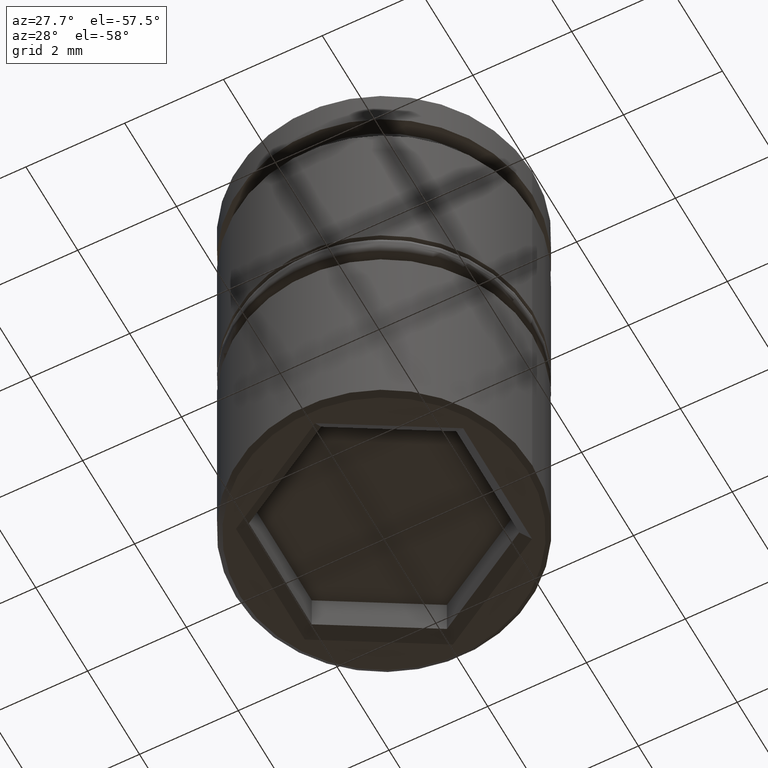
[diagram: clean part render]
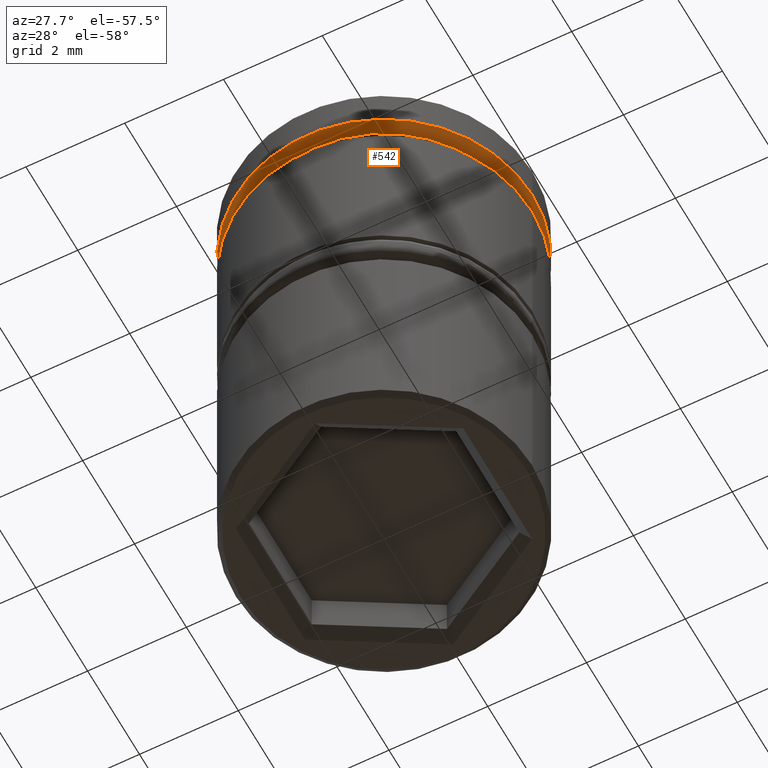
[diagram: same view with one face highlighted and labeled with its STEP entity id]
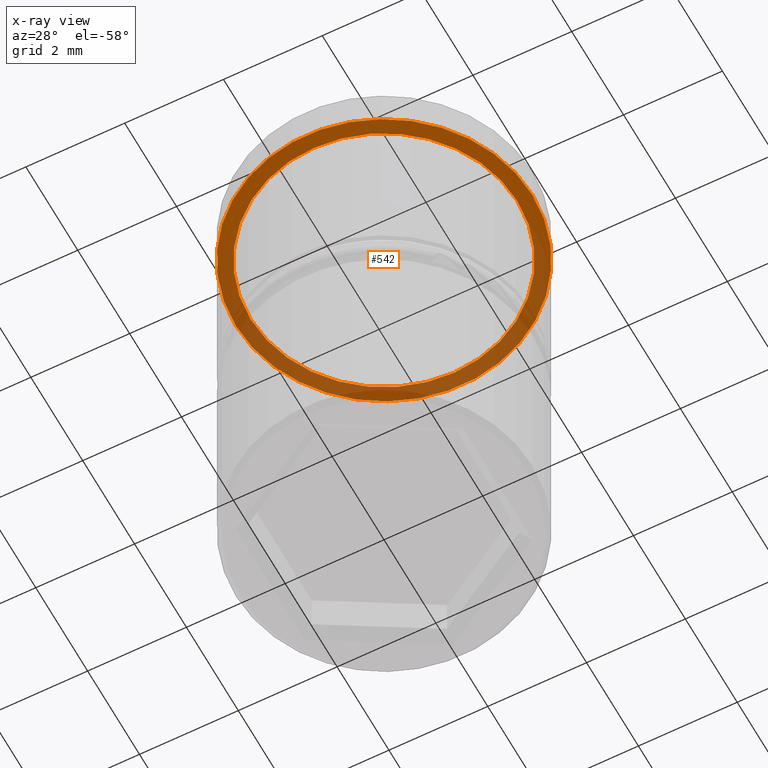
[diagram: x-ray of the same camera — body ghosted, the highlighted face saturated]
A machine part, auxiliary view. The second image highlights one B-rep face of the part: STEP entity #542.
The next image is the same camera in x-ray: the body ghosted, the highlighted face saturated — about 53% of this face is hidden behind the body in this view.
In plain terms, the highlighted planar face has unit normal (0, 0, -1).
Its self-contained STEP definition (entity closure, byte-faithful):
#6 = CARTESIAN_POINT ( 'NONE',  ( -3.000000000000000000, 3.673940397442059868E-16, -0.8749999999999998890 ) ) ;
#21 = CARTESIAN_POINT ( 'NONE',  ( 0.000000000000000000, 0.000000000000000000, -0.8749999999999998890 ) ) ;
#66 = CARTESIAN_POINT ( 'NONE',  ( 0.000000000000000000, 0.000000000000000000, -0.8749999999999998890 ) ) ;
#82 = ORIENTED_EDGE ( 'NONE', *, *, #781, .F. ) ;
#87 = FACE_BOUND ( 'NONE', #960, .T. ) ;
#89 = CARTESIAN_POINT ( 'NONE',  ( 3.000000000000000000, 0.000000000000000000, -0.8749999999999998890 ) ) ;
#101 = ORIENTED_EDGE ( 'NONE', *, *, #838, .T. ) ;
#141 = CARTESIAN_POINT ( 'NONE',  ( 0.000000000000000000, 0.000000000000000000, -0.8749999999999998890 ) ) ;
#162 = CIRCLE ( 'NONE', #1111, 3.000000000000000000 ) ;
#249 = DIRECTION ( 'NONE',  ( 1.000000000000000000, 0.000000000000000000, 0.000000000000000000 ) ) ;
#293 = VERTEX_POINT ( 'NONE', #6 ) ;
#333 = DIRECTION ( 'NONE',  ( 0.000000000000000000, 0.000000000000000000, -1.000000000000000000 ) ) ;
#335 = DIRECTION ( 'NONE',  ( -0.000000000000000000, -0.000000000000000000, 1.000000000000000000 ) ) ;
#340 = CARTESIAN_POINT ( 'NONE',  ( 0.000000000000000000, 3.000000000000000000, -0.8749999999999998890 ) ) ;
#356 = ORIENTED_EDGE ( 'NONE', *, *, #1179, .F. ) ;
#365 = AXIS2_PLACEMENT_3D ( 'NONE', #141, #958, #499 ) ;
#401 = VERTEX_POINT ( 'NONE', #494 ) ;
#494 = CARTESIAN_POINT ( 'NONE',  ( 2.700000000000000178, 0.000000000000000000, -0.8749999999999998890 ) ) ;
#499 = DIRECTION ( 'NONE',  ( 1.000000000000000000, 0.000000000000000000, 0.000000000000000000 ) ) ;
#517 = AXIS2_PLACEMENT_3D ( 'NONE', #21, #665, #571 ) ;
#522 = DIRECTION ( 'NONE',  ( 1.000000000000000000, 0.000000000000000000, 0.000000000000000000 ) ) ;
#542 = ADVANCED_FACE ( 'NONE', ( #87, #963 ), #1138, .T. ) ;
#546 = CIRCLE ( 'NONE', #517, 2.700000000000000178 ) ;
#571 = DIRECTION ( 'NONE',  ( 1.000000000000000000, 0.000000000000000000, 0.000000000000000000 ) ) ;
#588 = EDGE_LOOP ( 'NONE', ( #356, #82 ) ) ;
#602 = CIRCLE ( 'NONE', #365, 3.000000000000000000 ) ;
#665 = DIRECTION ( 'NONE',  ( -0.000000000000000000, -0.000000000000000000, 1.000000000000000000 ) ) ;
#669 = ORIENTED_EDGE ( 'NONE', *, *, #995, .T. ) ;
#683 = CIRCLE ( 'NONE', #798, 2.700000000000000178 ) ;
#697 = CARTESIAN_POINT ( 'NONE',  ( -2.700000000000000178, 3.306546357697853733E-16, -0.8749999999999998890 ) ) ;
#709 = DIRECTION ( 'NONE',  ( -1.000000000000000000, 0.000000000000000000, -0.000000000000000000 ) ) ;
#728 = DIRECTION ( 'NONE',  ( -0.000000000000000000, -0.000000000000000000, 1.000000000000000000 ) ) ;
#753 = AXIS2_PLACEMENT_3D ( 'NONE', #340, #333, #709 ) ;
#781 = EDGE_CURVE ( 'NONE', #293, #821, #162, .T. ) ;
#798 = AXIS2_PLACEMENT_3D ( 'NONE', #815, #728, #522 ) ;
#815 = CARTESIAN_POINT ( 'NONE',  ( 0.000000000000000000, 0.000000000000000000, -0.8749999999999998890 ) ) ;
#821 = VERTEX_POINT ( 'NONE', #89 ) ;
#838 = EDGE_CURVE ( 'NONE', #957, #401, #683, .T. ) ;
#957 = VERTEX_POINT ( 'NONE', #697 ) ;
#958 = DIRECTION ( 'NONE',  ( -0.000000000000000000, -0.000000000000000000, 1.000000000000000000 ) ) ;
#960 = EDGE_LOOP ( 'NONE', ( #669, #101 ) ) ;
#963 = FACE_OUTER_BOUND ( 'NONE', #588, .T. ) ;
#995 = EDGE_CURVE ( 'NONE', #401, #957, #546, .T. ) ;
#1111 = AXIS2_PLACEMENT_3D ( 'NONE', #66, #335, #249 ) ;
#1138 = PLANE ( 'NONE',  #753 ) ;
#1179 = EDGE_CURVE ( 'NONE', #821, #293, #602, .T. ) ;